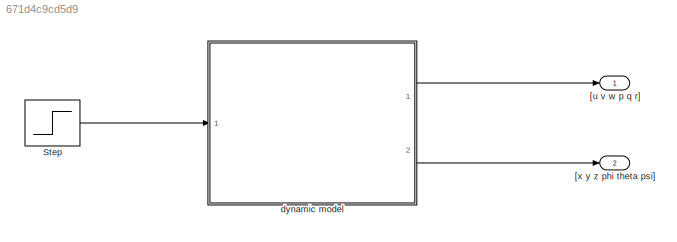
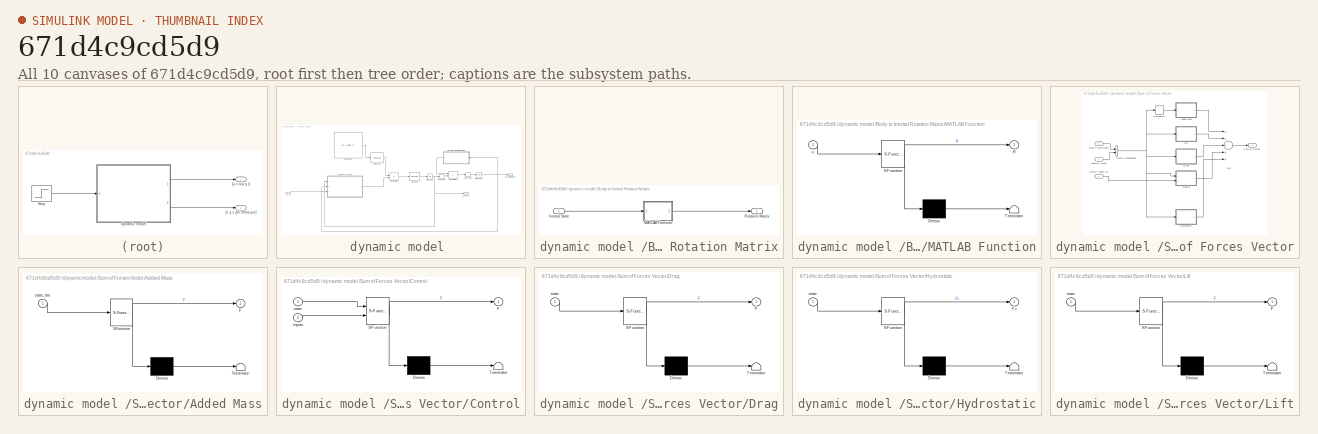
[diagram: thumbnail index - all 10 canvases of the model, root first then tree order]
MODEL slx_671d4c9cd5d9
KIND model
CONFIG AbsTol = auto
CONFIG EnableMultiTasking = off
CONFIG FixedStep = 0.001
CONFIG MaxStep = auto
CONFIG MinStep = auto
CONFIG RelTol = 1e-3
CONFIG SampleTimeConstraint = Unconstrained
CONFIG Solver = FixedStepAuto
CONFIG SolverName = FixedStepAuto
CONFIG StartTime = 0.0
CONFIG StopTime = 10.0
BLOCK [Step] Step
  After = 0.5*[1 1 1 1]
  Before = [0 0 0 0]
  SampleTime = 0
  Time = 0
BLOCK [Outport] [u v w p q r]
  IconDisplay = Port number
BLOCK [Outport] [x y z phi theta psi]
  IconDisplay = Port number
  Port = 2
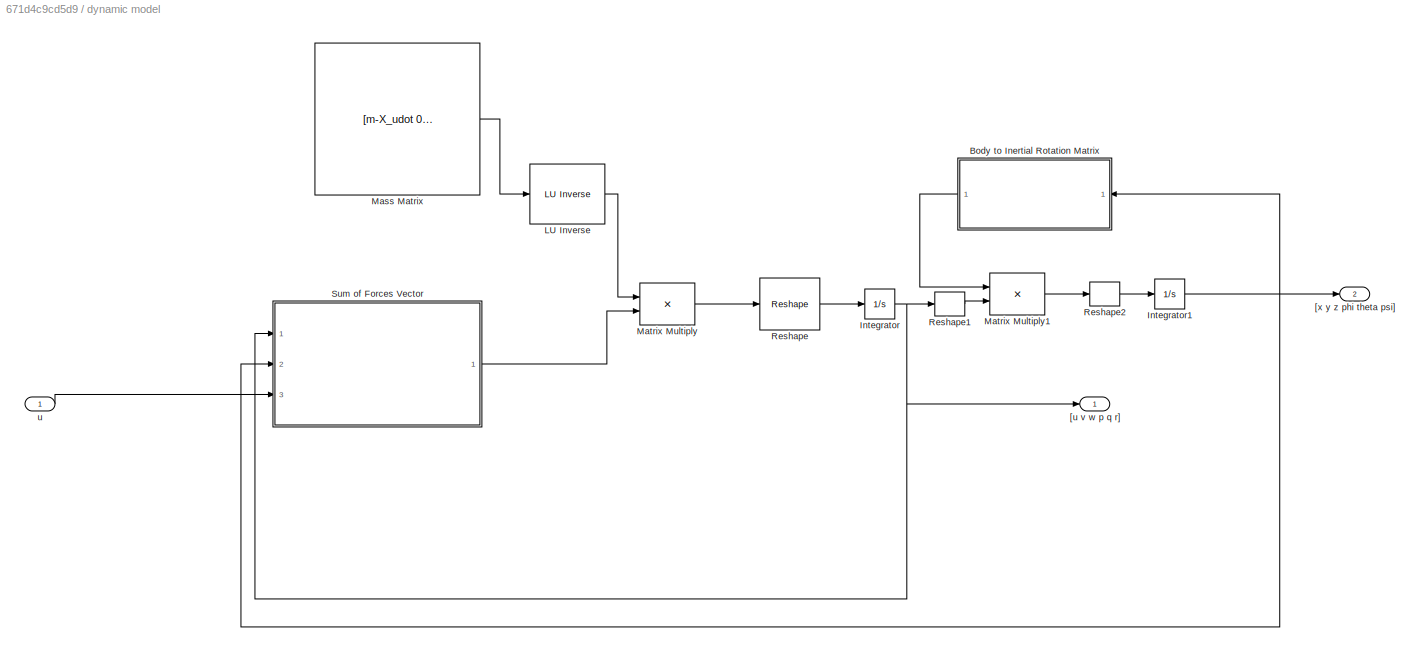
BLOCK [SubSystem] dynamic model 
  Ports = [1, 2]
  RequestExecContextInheritance = off
  Variant = off
BLOCK [Reference] dynamic model / LU Inverse  REF=dspinverses/ LU Inverse
  Ports = [1, 1]
  SourceBlock = dspinverses/ LU Inverse
  SourceType = LU Inverse
BLOCK [SubSystem] dynamic model /Body to Inertial Rotation Matrix
  Ports = [1, 1]
  RequestExecContextInheritance = off
  Variant = off
BLOCK [Inport] dynamic model /Body to Inertial Rotation Matrix/Inertial State
  IconDisplay = Port number
  VarSizeSig = No
BLOCK [SubSystem] dynamic model /Body to Inertial Rotation Matrix/MATLAB Function
  ErrorFcn = Stateflow.Translate.translate
  PermitHierarchicalResolution = ExplicitOnly
  Ports = [1, 1]
  RequestExecContextInheritance = off
  SFBlockType = MATLAB Function
  TreatAsAtomicUnit = on
  Variant = off
BLOCK [Demux] dynamic model /Body to Inertial Rotation Matrix/MATLAB Function/ Demux 
  Outputs = 1
  Ports = [1, 1]
BLOCK [S-Function] dynamic model /Body to Inertial Rotation Matrix/MATLAB Function/ SFunction 
  EnableBusSupport = on
  FunctionName = sf_sfun
  PortCounts = [1 2]
  Ports = [1, 2]
  SFcnIsStateOwnerBlock = off
  SFunctionDeploymentMode = off
  Tag = Stateflow S-Function beluga_control_a 2
BLOCK [Terminator] dynamic model /Body to Inertial Rotation Matrix/MATLAB Function/ Terminator 
BLOCK [Outport] dynamic model /Body to Inertial Rotation Matrix/MATLAB Function/R
  IconDisplay = Port number
BLOCK [Inport] dynamic model /Body to Inertial Rotation Matrix/MATLAB Function/u
  IconDisplay = Port number
BLOCK [Outport] dynamic model /Body to Inertial Rotation Matrix/Rotation Matrix
  IconDisplay = Port number
  PortDimensions = [6,6]
BLOCK [Integrator] dynamic model /Integrator
  InitialCondition = [0 0 0 0 0 0]'
  Ports = [1, 1]
BLOCK [Integrator] dynamic model /Integrator1
  InitialCondition = [0 0 0 0 0 0]'
  Ports = [1, 1]
BLOCK [Constant] dynamic model /Mass Matrix 
  Value = [m-X_udot 0 0 0 m*zg 0; 0 m-Y_vdot 0 -m*zg 0 m*xg-Y_rdot; 0 0 m-Z_wdot 0 -m*xg-Z_qdot 0; 0 -m*zg 0 Ix-K_pdot 0 0; m*zg 0 -m*xg-M_wdot 0 Iy-M_qdot 0; 0 m*xg-N_vdot 0 0 0 Iz-N_rdot]
  VectorParams1D = off
BLOCK [Product] dynamic model /Matrix Multiply
  InputSameDT = off
  Multiplication = Matrix(*)
  OutDataTypeStr = Inherit: Inherit via internal rule
  Ports = [2, 1]
  RndMeth = Floor
  SaturateOnIntegerOverflow = off
BLOCK [Product] dynamic model /Matrix Multiply1
  InputSameDT = off
  Multiplication = Matrix(*)
  OutDataTypeStr = Inherit: Inherit via internal rule
  Ports = [2, 1]
  RndMeth = Floor
  SaturateOnIntegerOverflow = off
BLOCK [Reshape] dynamic model /Reshape
  OutputDimensions = 3
  Ports = [1, 1]
BLOCK [Reshape] dynamic model /Reshape1
  OutputDimensions = [1,6]
  Ports = [1, 1]
BLOCK [Reshape] dynamic model /Reshape2
  OutputDimensions = [6,1]
  Ports = [1, 1]
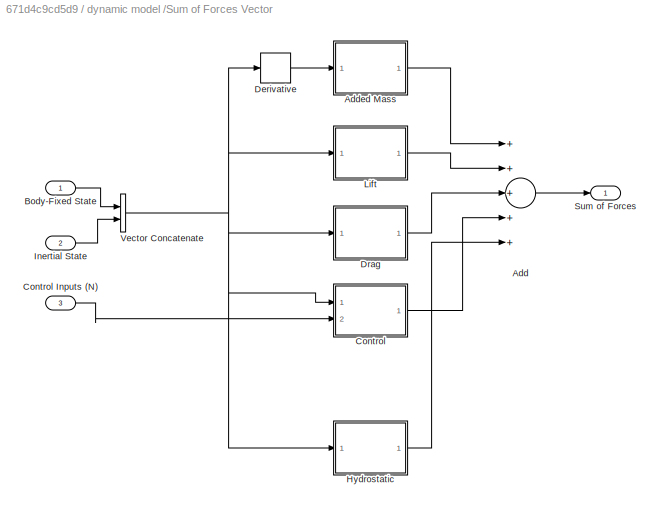
BLOCK [SubSystem] dynamic model /Sum of Forces Vector
  Ports = [3, 1]
  RequestExecContextInheritance = off
  Variant = off
BLOCK [Sum] dynamic model /Sum of Forces Vector/Add
  InputSameDT = off
  Inputs = +++++
  OutDataTypeStr = Inherit: Inherit via internal rule
  Ports = [5, 1]
  SaturateOnIntegerOverflow = off
BLOCK [SubSystem] dynamic model /Sum of Forces Vector/Added Mass
  ErrorFcn = Stateflow.Translate.translate
  PermitHierarchicalResolution = ExplicitOnly
  Ports = [1, 1]
  RequestExecContextInheritance = off
  SFBlockType = MATLAB Function
  TreatAsAtomicUnit = on
  Variant = off
BLOCK [Demux] dynamic model /Sum of Forces Vector/Added Mass/ Demux 
  Outputs = 1
  Ports = [1, 1]
BLOCK [S-Function] dynamic model /Sum of Forces Vector/Added Mass/ SFunction 
  EnableBusSupport = on
  FunctionName = sf_sfun
  PortCounts = [1 2]
  Ports = [1, 2]
  SFcnIsStateOwnerBlock = off
  SFunctionDeploymentMode = off
  Tag = Stateflow S-Function beluga_control_a 6
BLOCK [Terminator] dynamic model /Sum of Forces Vector/Added Mass/ Terminator 
BLOCK [Outport] dynamic model /Sum of Forces Vector/Added Mass/F
  IconDisplay = Port number
BLOCK [Inport] dynamic model /Sum of Forces Vector/Added Mass/state_dot
  IconDisplay = Port number
BLOCK [Inport] dynamic model /Sum of Forces Vector/Body-Fixed State
  IconDisplay = Port number
BLOCK [SubSystem] dynamic model /Sum of Forces Vector/Control
  ErrorFcn = Stateflow.Translate.translate
  PermitHierarchicalResolution = ExplicitOnly
  Ports = [2, 1]
  RequestExecContextInheritance = off
  SFBlockType = MATLAB Function
  TreatAsAtomicUnit = on
  Variant = off
BLOCK [Inport] dynamic model /Sum of Forces Vector/Control Inputs (N)
  IconDisplay = Port number
  Port = 3
BLOCK [Demux] dynamic model /Sum of Forces Vector/Control/ Demux 
  Outputs = 1
  Ports = [1, 1]
BLOCK [S-Function] dynamic model /Sum of Forces Vector/Control/ SFunction 
  EnableBusSupport = on
  FunctionName = sf_sfun
  PortCounts = [2 2]
  Ports = [2, 2]
  SFcnIsStateOwnerBlock = off
  SFunctionDeploymentMode = off
  Tag = Stateflow S-Function beluga_control_a 1
BLOCK [Terminator] dynamic model /Sum of Forces Vector/Control/ Terminator 
BLOCK [Outport] dynamic model /Sum of Forces Vector/Control/F
  IconDisplay = Port number
BLOCK [Inport] dynamic model /Sum of Forces Vector/Control/inputs
  IconDisplay = Port number
  Port = 2
BLOCK [Inport] dynamic model /Sum of Forces Vector/Control/state
  IconDisplay = Port number
BLOCK [Derivative] dynamic model /Sum of Forces Vector/Derivative
BLOCK [SubSystem] dynamic model /Sum of Forces Vector/Drag
  ErrorFcn = Stateflow.Translate.translate
  PermitHierarchicalResolution = ExplicitOnly
  Ports = [1, 1]
  RequestExecContextInheritance = off
  SFBlockType = MATLAB Function
  TreatAsAtomicUnit = on
  Variant = off
BLOCK [Demux] dynamic model /Sum of Forces Vector/Drag/ Demux 
  Outputs = 1
  Ports = [1, 1]
BLOCK [S-Function] dynamic model /Sum of Forces Vector/Drag/ SFunction 
  EnableBusSupport = on
  FunctionName = sf_sfun
  PortCounts = [1 2]
  Ports = [1, 2]
  SFcnIsStateOwnerBlock = off
  SFunctionDeploymentMode = off
  Tag = Stateflow S-Function beluga_control_a 4
BLOCK [Terminator] dynamic model /Sum of Forces Vector/Drag/ Terminator 
BLOCK [Outport] dynamic model /Sum of Forces Vector/Drag/F
  IconDisplay = Port number
BLOCK [Inport] dynamic model /Sum of Forces Vector/Drag/state
  IconDisplay = Port number
BLOCK [SubSystem] dynamic model /Sum of Forces Vector/Hydrostatic
  ErrorFcn = Stateflow.Translate.translate
  PermitHierarchicalResolution = ExplicitOnly
  Ports = [1, 1]
  RequestExecContextInheritance = off
  SFBlockType = MATLAB Function
  TreatAsAtomicUnit = on
  Variant = off
BLOCK [Demux] dynamic model /Sum of Forces Vector/Hydrostatic/ Demux 
  Outputs = 1
  Ports = [1, 1]
BLOCK [S-Function] dynamic model /Sum of Forces Vector/Hydrostatic/ SFunction 
  EnableBusSupport = on
  FunctionName = sf_sfun
  PortCounts = [1 2]
  Ports = [1, 2]
  SFcnIsStateOwnerBlock = off
  SFunctionDeploymentMode = off
  Tag = Stateflow S-Function beluga_control_a 3
BLOCK [Terminator] dynamic model /Sum of Forces Vector/Hydrostatic/ Terminator 
BLOCK [Outport] dynamic model /Sum of Forces Vector/Hydrostatic/Fc
  IconDisplay = Port number
BLOCK [Inport] dynamic model /Sum of Forces Vector/Hydrostatic/state
  IconDisplay = Port number
BLOCK [Inport] dynamic model /Sum of Forces Vector/Inertial State
  IconDisplay = Port number
  Port = 2
BLOCK [SubSystem] dynamic model /Sum of Forces Vector/Lift
  ErrorFcn = Stateflow.Translate.translate
  PermitHierarchicalResolution = ExplicitOnly
  Ports = [1, 1]
  RequestExecContextInheritance = off
  SFBlockType = MATLAB Function
  TreatAsAtomicUnit = on
  Variant = off
BLOCK [Demux] dynamic model /Sum of Forces Vector/Lift/ Demux 
  Outputs = 1
  Ports = [1, 1]
BLOCK [S-Function] dynamic model /Sum of Forces Vector/Lift/ SFunction 
  EnableBusSupport = on
  FunctionName = sf_sfun
  PortCounts = [1 2]
  Ports = [1, 2]
  SFcnIsStateOwnerBlock = off
  SFunctionDeploymentMode = off
  Tag = Stateflow S-Function beluga_control_a 5
BLOCK [Terminator] dynamic model /Sum of Forces Vector/Lift/ Terminator 
BLOCK [Outport] dynamic model /Sum of Forces Vector/Lift/F
  IconDisplay = Port number
BLOCK [Inport] dynamic model /Sum of Forces Vector/Lift/state
  IconDisplay = Port number
BLOCK [Outport] dynamic model /Sum of Forces Vector/Sum of Forces
  IconDisplay = Port number
BLOCK [Concatenate] dynamic model /Sum of Forces Vector/Vector Concatenate
  Ports = [2, 1]
BLOCK [Outport] dynamic model /[u v w p q r]
  IconDisplay = Port number
BLOCK [Outport] dynamic model /[x y z phi theta psi]
  IconDisplay = Port number
  Port = 2
BLOCK [Inport] dynamic model /u
  IconDisplay = Port number
  PortDimensions = [4,1]
LINE Step:1 -> dynamic model :1
LINE dynamic model / LU Inverse:1 -> dynamic model /Matrix Multiply:1
LINE dynamic model /Body to Inertial Rotation Matrix/Inertial State:1 -> dynamic model /Body to Inertial Rotation Matrix/MATLAB Function:1
LINE dynamic model /Body to Inertial Rotation Matrix/MATLAB Function:1 -> dynamic model /Body to Inertial Rotation Matrix/Rotation Matrix:1
LINE dynamic model /Body to Inertial Rotation Matrix:1 -> dynamic model /Matrix Multiply1:1
NET dynamic model /Integrator1:1 -> dynamic model /Body to Inertial Rotation Matrix:1, dynamic model /Sum of Forces Vector:2, dynamic model /[x y z phi theta psi]:1
NET dynamic model /Integrator:1 -> dynamic model /Reshape1:1, dynamic model /Sum of Forces Vector:1, dynamic model /[u v w p q r]:1
LINE dynamic model /Mass Matrix :1 -> dynamic model / LU Inverse:1
LINE dynamic model /Matrix Multiply1:1 -> dynamic model /Reshape2:1
LINE dynamic model /Matrix Multiply:1 -> dynamic model /Reshape:1
LINE dynamic model /Reshape1:1 -> dynamic model /Matrix Multiply1:2
LINE dynamic model /Reshape2:1 -> dynamic model /Integrator1:1
LINE dynamic model /Reshape:1 -> dynamic model /Integrator:1
LINE dynamic model /Sum of Forces Vector/Add:1 -> dynamic model /Sum of Forces Vector/Sum of Forces:1
LINE dynamic model /Sum of Forces Vector/Added Mass:1 -> dynamic model /Sum of Forces Vector/Add:1
LINE dynamic model /Sum of Forces Vector/Body-Fixed State:1 -> dynamic model /Sum of Forces Vector/Vector Concatenate:1
LINE dynamic model /Sum of Forces Vector/Control Inputs (N):1 -> dynamic model /Sum of Forces Vector/Control:2
LINE dynamic model /Sum of Forces Vector/Control:1 -> dynamic model /Sum of Forces Vector/Add:4
LINE dynamic model /Sum of Forces Vector/Derivative:1 -> dynamic model /Sum of Forces Vector/Added Mass:1
LINE dynamic model /Sum of Forces Vector/Drag:1 -> dynamic model /Sum of Forces Vector/Add:3
LINE dynamic model /Sum of Forces Vector/Hydrostatic:1 -> dynamic model /Sum of Forces Vector/Add:5
LINE dynamic model /Sum of Forces Vector/Inertial State:1 -> dynamic model /Sum of Forces Vector/Vector Concatenate:2
LINE dynamic model /Sum of Forces Vector/Lift:1 -> dynamic model /Sum of Forces Vector/Add:2
NET dynamic model /Sum of Forces Vector/Vector Concatenate:1 -> dynamic model /Sum of Forces Vector/Control:1, dynamic model /Sum of Forces Vector/Derivative:1, dynamic model /Sum of Forces Vector/Drag:1, dynamic model /Sum of Forces Vector/Hydrostatic:1, dynamic model /Sum of Forces Vector/Lift:1
LINE dynamic model /Sum of Forces Vector:1 -> dynamic model /Matrix Multiply:2
LINE dynamic model /u:1 -> dynamic model /Sum of Forces Vector:3
LINE dynamic model :1 -> [u v w p q r]:1
LINE dynamic model :2 -> [x y z phi theta psi]:1
note: NET lines group one-source signal fan-out (src -> all destinations, sorted); 1:1 wires keep LINE
CHART dynamic model
/Sum of Forces Vector/Control states=1 transitions=1
  STATE_LABEL 'eML_blk_kernel()'
  STATE_LABEL 'SCRIPT:\nfunction F = fcn(state, inputs)\n    \n    %% Constants TODO\n        % TODO #1: Check constants and polarity for K_c\n        % TODO #2: Check M_c\n        % TODO #3: Check polarity of N_c\n        % TODO #4: Add in multiplying the sum of forces by L when\n        %           calculating M_c\n        % TODO #5: Add in multiplying the sum of forces by L when\n        %           calculating N_c    ...<+3608ch>'
CHART dynamic model
/Body to Inertial Rotation Matrix/MATLAB Function states=1 transitions=1
  STATE_LABEL 'eML_blk_kernel()'
  STATE_LABEL 'SCRIPT:\nfunction R = fcn(u)\n    % Inputs\n    x = u(1);\n    y = u(2);\n    z = u(3);\n    phi = u(4);\n    theta = u(5);\n    psi = u(6);\n    \n    % transformation\n    cosphi = cos(phi);\n    sinphi = sin(phi);\n    costheta = cos(theta);\n    sintheta = sin(theta);\n    cospsi = cos(psi);\n    sinpsi = sin(psi);\n\n    R = zeros(6,6);\n    R(1,1) = cospsi.*cosphi-costheta.*sinphi.*sinpsi;\n    R(1,2) = sinphi....<+351ch>'
CHART dynamic model
/Sum of Forces Vector/Hydrostatic states=1 transitions=1
  STATE_LABEL 'eML_blk_kernel()'
  STATE_LABEL 'SCRIPT:\nfunction Fc = fcn(state)\n    %% Constants\n    %Measured Parameters:\n    W = 198; %N, Weight Force of AUV w/ Ballast\n    B = W; %N, Buoyant Force of AUV w/ Ballast\n    \n    %Measured or Estimated Centers of Buoyancy and Gravity\n    zcg = -0.03; %cg right under cb\n    \n    %% States and calculations\n    % defining relevant states\n    phi = state(10);\n    theta = state(11);\n    \n    % Hydrost...<+437ch>'
CHART dynamic model
/Sum of Forces Vector/Drag states=1 transitions=1
  STATE_LABEL 'eML_blk_kernel()'
  STATE_LABEL 'SCRIPT:\nfunction F = fcn(state)\n    %% States and calculations\n    % defining states\n    u = state(1);\n    v = state(2);\n    w = state(3);\n\n    q = state(5);\n    r = state(6);\n\n    %Drag Constants (pre-calculated, mid-year paper)\n    X_u_abs_u = -1.05; %kg*m, Axial\n    M_w_abs_w = -74.7; %kg*m/rad^2, Pitch-Z\n    M_q_abs_q = -70.3; %kg*m^2/rad^2, Pitch-Pitch\n    N_v_abs_v = 74.7; %kg*m/rad^2, Yaw-Y...<+386ch>'
CHART dynamic model
/Sum of Forces Vector/Lift states=1 transitions=1
  STATE_LABEL 'eML_blk_kernel()'
  STATE_LABEL "SCRIPT:\nfunction F = fcn(state)\n\n    % defining states\n    u = state(1);\n    v = state(2);\n    w = state(3);\n    p = state(4);\n    q = state(5);\n    r = state(6);\n\n    % output force vector (Assuming all lift forces are negligible,\n    % mid-year report)\n    X = 0;\n    Y = 0;\n    Z = 0;\n    K = 0;\n    M = 0;\n    N = 0;\n    F = [X Y Z K M N]'; \nend\n\n"
CHART dynamic model
/Sum of Forces Vector/Added Mass states=1 transitions=1
  STATE_LABEL 'eML_blk_kernel()'
  STATE_LABEL "SCRIPT:\nfunction F = fcn(state_dot)\n    \n    %% Constants\n    %disp('Calc Nonlinear Coeffs')\n    %Conversion Factors:\n    i2m = 0.0254; %Conversion factor (inches to meters)\n    rho = 1.03*10^(3); %seawater density (kg/m^3)\n    %****Beluga Mechanical Parameters*********************\n    a = 0.152; % the full length of the nose section of the vehicle (m)\n    a_offset = 0.000001; %the missing length ...<+3171ch>"
